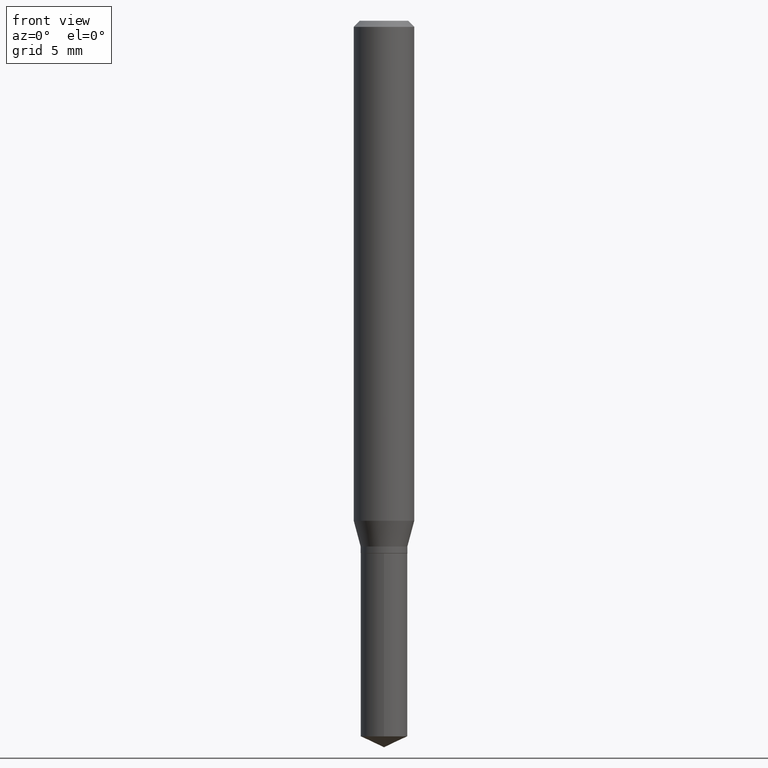
[diagram: clean part render]
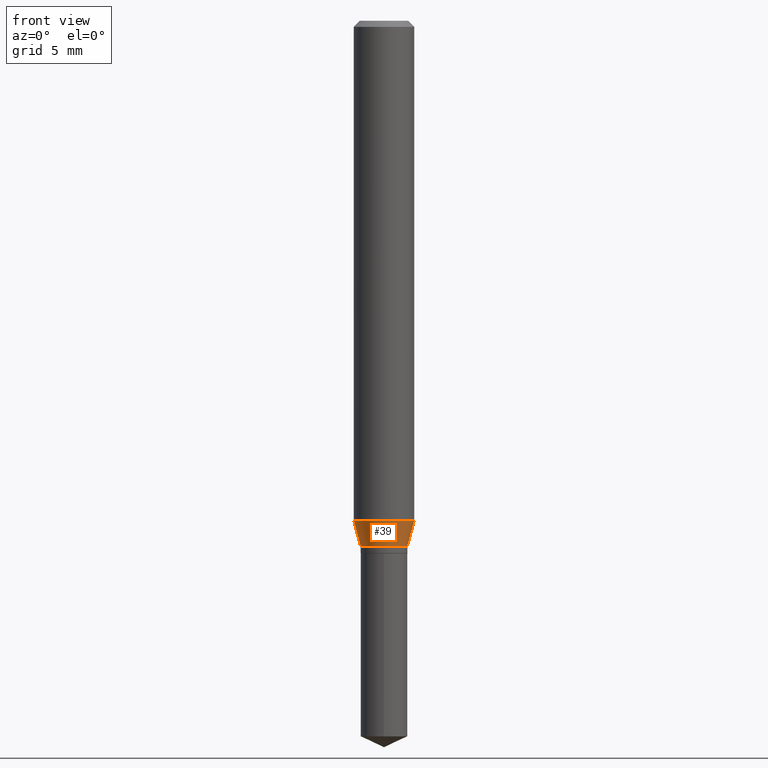
[diagram: same view with one face highlighted and labeled with its STEP entity id]
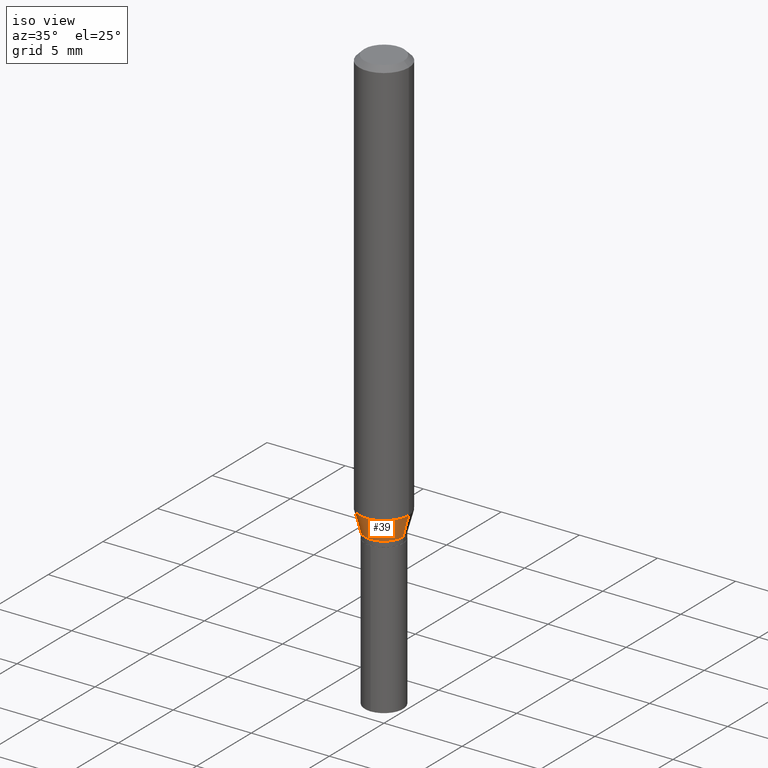
[diagram: same view with one face highlighted and labeled with its STEP entity id]
A machine part, front view. The second image highlights one B-rep face of the part: STEP entity #39.
A second angle (iso view) of the same face is appended — the face is thin or edge-on in the first view.
In plain terms, the highlighted conical surface has half-angle 15 deg.
Its self-contained STEP definition (entity closure, byte-faithful):
#7 = EDGE_CURVE ( 'NONE', #117, #347, #198, .T. ) ;
#13 = DIRECTION ( 'NONE',  ( -0.2588190451025212391, 5.211531920934549464E-15, 0.9659258262890679791 ) ) ;
#17 = CARTESIAN_POINT ( 'NONE',  ( 0.06250000000000012490, -4.040755163728689015E-15, -1.032318275992143430 ) ) ;
#20 = DIRECTION ( 'NONE',  ( 1.000000000000000000, -6.982962677686264344E-15, 0.000000000000000000 ) ) ;
#37 = CARTESIAN_POINT ( 'NONE',  ( -0.06250000000000012490, -3.160230786523232758E-15, -1.032318275992143430 ) ) ;
#39 = ADVANCED_FACE ( 'NONE', ( #288 ), #284, .T. ) ;
#45 = EDGE_CURVE ( 'NONE', #117, #464, #381, .T. ) ;
#57 = EDGE_LOOP ( 'NONE', ( #421, #203, #98, #133 ) ) ;
#75 = AXIS2_PLACEMENT_3D ( 'NONE', #206, #468, #20 ) ;
#91 = VECTOR ( 'NONE', #13, 39.37007874015748854 ) ;
#98 = ORIENTED_EDGE ( 'NONE', *, *, #234, .T. ) ;
#111 = EDGE_CURVE ( 'NONE', #347, #460, #194, .T. ) ;
#117 = VERTEX_POINT ( 'NONE', #471 ) ;
#133 = ORIENTED_EDGE ( 'NONE', *, *, #111, .F. ) ;
#140 = DIRECTION ( 'NONE',  ( -2.445468806185136597E-29, 3.491481338843145583E-15, 1.000000000000000000 ) ) ;
#172 = CARTESIAN_POINT ( 'NONE',  ( 0.04825000000000000122, -4.126930942512597731E-15, -1.085500000000000131 ) ) ;
#187 = DIRECTION ( 'NONE',  ( 0.2588190451025212391, 1.565188264969622362E-15, 0.9659258262890679791 ) ) ;
#194 = CIRCLE ( 'NONE', #75, 0.06250000000000012490 ) ;
#198 = LINE ( 'NONE', #340, #91 ) ;
#203 = ORIENTED_EDGE ( 'NONE', *, *, #45, .T. ) ;
#206 = CARTESIAN_POINT ( 'NONE',  ( 2.524502141993605107E-29, -3.604319996373296557E-15, -1.032318275992143430 ) ) ;
#209 = CARTESIAN_POINT ( 'NONE',  ( 2.654556389113966413E-29, -3.790002993314234920E-15, -1.085500000000000131 ) ) ;
#234 = EDGE_CURVE ( 'NONE', #464, #460, #370, .T. ) ;
#242 = DIRECTION ( 'NONE',  ( -2.445468806185136597E-29, 3.491481338843145583E-15, 1.000000000000000000 ) ) ;
#252 = DIRECTION ( 'NONE',  ( 1.000000000000000000, -6.982962677686267499E-15, 0.000000000000000000 ) ) ;
#264 = VECTOR ( 'NONE', #187, 39.37007874015748854 ) ;
#284 = CONICAL_SURFACE ( 'NONE', #432, 0.04825000000000000122, 0.2617993877991499629 ) ;
#288 = FACE_OUTER_BOUND ( 'NONE', #57, .T. ) ;
#335 = CARTESIAN_POINT ( 'NONE',  ( 0.04825000000000000122, -4.126930942512597731E-15, -1.085500000000000131 ) ) ;
#340 = CARTESIAN_POINT ( 'NONE',  ( -0.04825000000000000122, -3.447166123309986473E-15, -1.085500000000000131 ) ) ;
#347 = VERTEX_POINT ( 'NONE', #37 ) ;
#370 = LINE ( 'NONE', #335, #264 ) ;
#381 = CIRCLE ( 'NONE', #412, 0.04825000000000000122 ) ;
#412 = AXIS2_PLACEMENT_3D ( 'NONE', #209, #242, #439 ) ;
#421 = ORIENTED_EDGE ( 'NONE', *, *, #7, .F. ) ;
#429 = CARTESIAN_POINT ( 'NONE',  ( 2.654556389113966413E-29, -3.790002993314234920E-15, -1.085500000000000131 ) ) ;
#432 = AXIS2_PLACEMENT_3D ( 'NONE', #429, #140, #252 ) ;
#439 = DIRECTION ( 'NONE',  ( 1.000000000000000000, -6.982962677686267499E-15, 0.000000000000000000 ) ) ;
#460 = VERTEX_POINT ( 'NONE', #17 ) ;
#464 = VERTEX_POINT ( 'NONE', #172 ) ;
#468 = DIRECTION ( 'NONE',  ( -2.445468806185136597E-29, 3.491481338843145583E-15, 1.000000000000000000 ) ) ;
#471 = CARTESIAN_POINT ( 'NONE',  ( -0.04825000000000000122, -3.471606492681888312E-15, -1.085500000000000131 ) ) ;